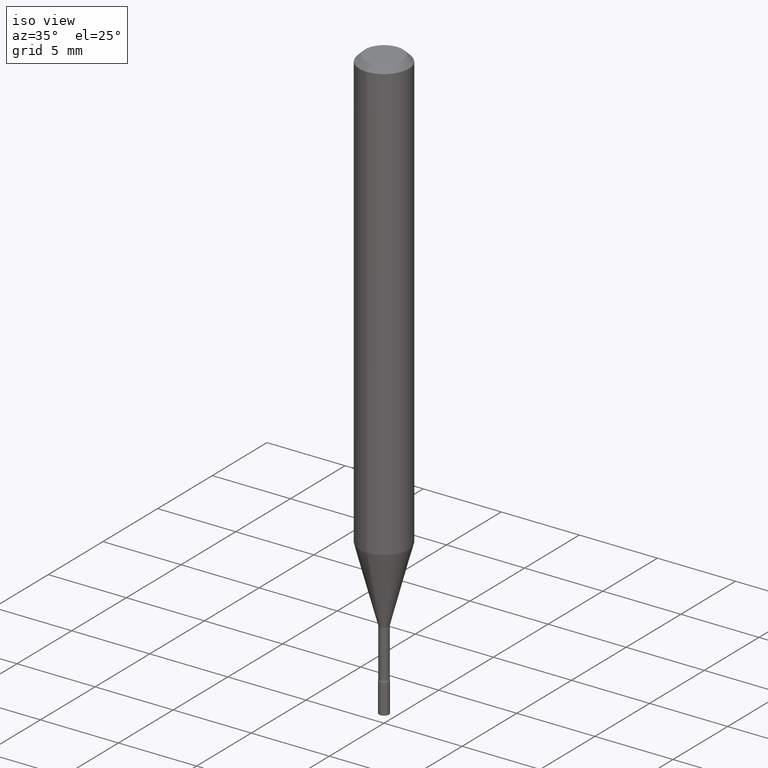
[diagram: clean part render]
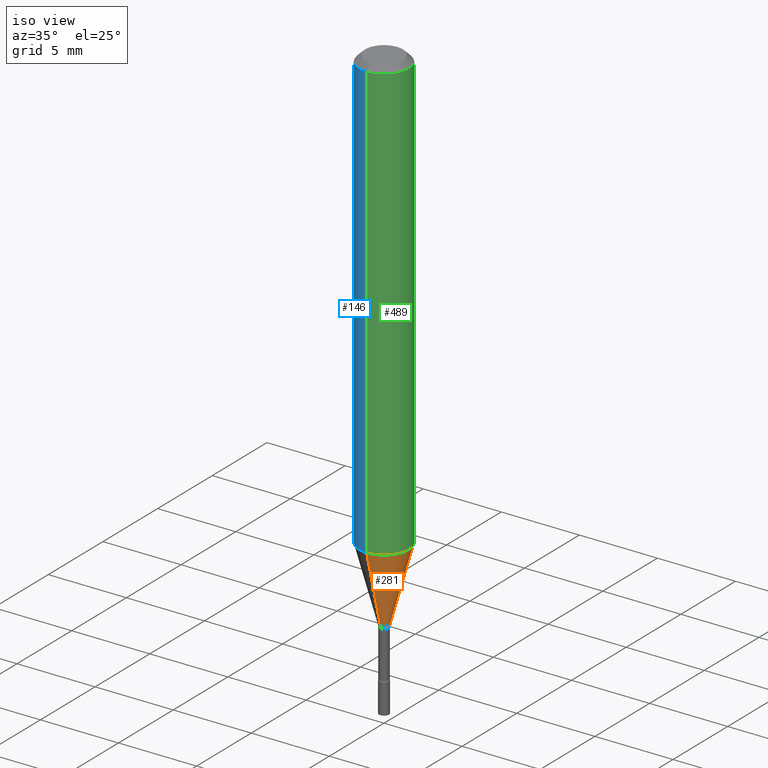
[diagram: same view with three faces highlighted in distinct colors, each labeled with its STEP entity id]
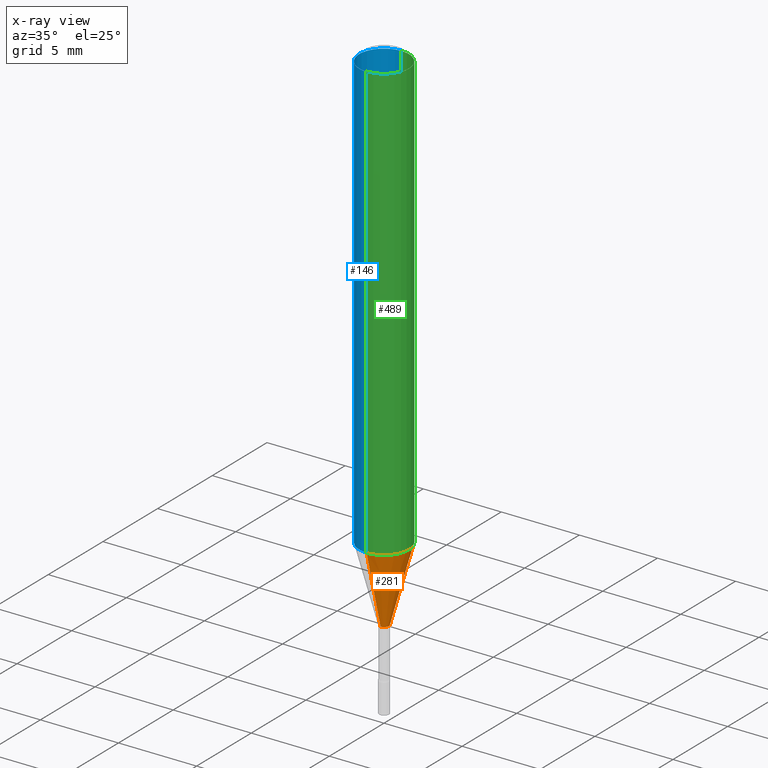
[diagram: x-ray of the same camera — body ghosted, the three highlighted faces saturated]
A machine part, iso view with three faces highlighted in distinct colors.
The next image is the same camera in x-ray (body ghosted, the three faces saturated) — at least one of them is partly hidden behind the body in this view.
Their STEP definitions:

[orange] entity #281 — the highlighted conical surface has half-angle 15 deg.
#7 = ORIENTED_EDGE ( 'NONE', *, *, #117, .T. ) ;
#19 = AXIS2_PLACEMENT_3D ( 'NONE', #509, #38, #305 ) ;
#31 = DIRECTION ( 'NONE',  ( -1.807323732225328167E-15, -0.2588190451025179084, 0.9659258262890690894 ) ) ;
#34 = CARTESIAN_POINT ( 'NONE',  ( 2.715880977445467390E-29, -3.877709302869931767E-15, -1.110598421515879952 ) ) ;
#37 = CARTESIAN_POINT ( 'NONE',  ( 2.656048273965166204E-16, 0.01226111260565944903, -1.298092501787273090 ) ) ;
#38 = DIRECTION ( 'NONE',  ( -2.445421247527529445E-29, 3.491549445547709881E-15, 1.000000000000000000 ) ) ;
#57 = EDGE_CURVE ( 'NONE', #325, #80, #343, .T. ) ;
#80 = VERTEX_POINT ( 'NONE', #230 ) ;
#117 = EDGE_CURVE ( 'NONE', #416, #204, #268, .T. ) ;
#122 = CIRCLE ( 'NONE', #513, 0.01226111260566398187 ) ;
#131 = EDGE_CURVE ( 'NONE', #325, #416, #122, .T. ) ;
#139 = DIRECTION ( 'NONE',  ( -2.445421247527529445E-29, 3.491549445547709881E-15, 1.000000000000000000 ) ) ;
#162 = ORIENTED_EDGE ( 'NONE', *, *, #57, .F. ) ;
#164 = CARTESIAN_POINT ( 'NONE',  ( 4.440892098500896347E-16, 0.06249999999999612116, -1.110598421515880174 ) ) ;
#175 = DIRECTION ( 'NONE',  ( -6.982962677686265133E-15, -1.000000000000000000, 0.000000000000000000 ) ) ;
#201 = CIRCLE ( 'NONE', #501, 0.06250000000000000000 ) ;
#204 = VERTEX_POINT ( 'NONE', #164 ) ;
#230 = CARTESIAN_POINT ( 'NONE',  ( -4.364351673553645523E-16, -0.06250000000000388578, -1.110598421515879730 ) ) ;
#232 = EDGE_LOOP ( 'NONE', ( #462, #7, #289, #162 ) ) ;
#265 = CARTESIAN_POINT ( 'NONE',  ( 3.174382985126765064E-29, -4.532354154884992382E-15, -1.298092501787273090 ) ) ;
#268 = LINE ( 'NONE', #306, #421 ) ;
#281 = ADVANCED_FACE ( 'NONE', ( #441 ), #455, .T. ) ;
#289 = ORIENTED_EDGE ( 'NONE', *, *, #311, .F. ) ;
#305 = DIRECTION ( 'NONE',  ( -6.982962677686265133E-15, -1.000000000000000000, 0.000000000000000000 ) ) ;
#306 = CARTESIAN_POINT ( 'NONE',  ( 8.712044494294308837E-17, 0.01226111260565944903, -1.298092501787273090 ) ) ;
#308 = DIRECTION ( 'NONE',  ( -6.982962677686265922E-15, -1.000000000000000000, 4.370956789862821150E-15 ) ) ;
#311 = EDGE_CURVE ( 'NONE', #80, #204, #201, .T. ) ;
#325 = VERTEX_POINT ( 'NONE', #465 ) ;
#343 = LINE ( 'NONE', #435, #459 ) ;
#351 = DIRECTION ( 'NONE',  ( -2.445421247527529445E-29, 3.491549445547709881E-15, 1.000000000000000000 ) ) ;
#416 = VERTEX_POINT ( 'NONE', #37 ) ;
#421 = VECTOR ( 'NONE', #439, 39.37007874015748854 ) ;
#435 = CARTESIAN_POINT ( 'NONE',  ( -8.561889171222843884E-17, -0.01226111260566851470, -1.298092501787273090 ) ) ;
#439 = DIRECTION ( 'NONE',  ( 1.839019923739597949E-15, 0.2588190451025246253, 0.9659258262890670910 ) ) ;
#441 = FACE_OUTER_BOUND ( 'NONE', #232, .T. ) ;
#455 = CONICAL_SURFACE ( 'NONE', #19, 0.01226111260566398187, 0.2617993877991499629 ) ;
#459 = VECTOR ( 'NONE', #31, 39.37007874015748143 ) ;
#462 = ORIENTED_EDGE ( 'NONE', *, *, #131, .T. ) ;
#465 = CARTESIAN_POINT ( 'NONE',  ( -8.561889171222843884E-17, -0.01226111260566851470, -1.298092501787273090 ) ) ;
#501 = AXIS2_PLACEMENT_3D ( 'NONE', #34, #351, #308 ) ;
#509 = CARTESIAN_POINT ( 'NONE',  ( 3.174382985126765064E-29, -4.532354154884992382E-15, -1.298092501787273090 ) ) ;
#513 = AXIS2_PLACEMENT_3D ( 'NONE', #265, #139, #175 ) ;

[blue] entity #146 — the highlighted cylindrical surface (edge-blend (fillet) strip) has radius 1.5875 mm, axis along (-0, 0, 1).
#8 = VERTEX_POINT ( 'NONE', #392 ) ;
#9 = DIRECTION ( 'NONE',  ( -6.982962677686265922E-15, -1.000000000000000000, 3.483106191921935554E-15 ) ) ;
#10 = VECTOR ( 'NONE', #503, 39.37007874015748143 ) ;
#28 = LINE ( 'NONE', #480, #368 ) ;
#29 = CARTESIAN_POINT ( 'NONE',  ( 2.715880977445467390E-29, -3.877709302869931767E-15, -1.110598421515879952 ) ) ;
#44 = EDGE_CURVE ( 'NONE', #80, #8, #28, .T. ) ;
#75 = CIRCLE ( 'NONE', #136, 0.06250000000000000000 ) ;
#80 = VERTEX_POINT ( 'NONE', #230 ) ;
#85 = ORIENTED_EDGE ( 'NONE', *, *, #183, .F. ) ;
#91 = ORIENTED_EDGE ( 'NONE', *, *, #349, .T. ) ;
#100 = LINE ( 'NONE', #442, #10 ) ;
#101 = DIRECTION ( 'NONE',  ( -2.445421247527529445E-29, 3.491549445547709881E-15, 1.000000000000000000 ) ) ;
#112 = CIRCLE ( 'NONE', #483, 0.06250000000000000000 ) ;
#136 = AXIS2_PLACEMENT_3D ( 'NONE', #174, #505, #9 ) ;
#142 = FACE_OUTER_BOUND ( 'NONE', #209, .T. ) ;
#146 = ADVANCED_FACE ( 'NONE', ( #142 ), #472, .T. ) ;
#147 = AXIS2_PLACEMENT_3D ( 'NONE', #338, #153, #314 ) ;
#148 = CARTESIAN_POINT ( 'NONE',  ( 4.440892098500899305E-16, 0.06249999999999995143, -0.01500000000000024751 ) ) ;
#153 = DIRECTION ( 'NONE',  ( -2.445421247527529445E-29, 3.491549445547709881E-15, 1.000000000000000000 ) ) ;
#164 = CARTESIAN_POINT ( 'NONE',  ( 4.440892098500896347E-16, 0.06249999999999612116, -1.110598421515880174 ) ) ;
#169 = EDGE_CURVE ( 'NONE', #204, #331, #100, .T. ) ;
#174 = CARTESIAN_POINT ( 'NONE',  ( 3.668131871291301454E-31, -5.237324168321575718E-17, -0.01500000000000003067 ) ) ;
#183 = EDGE_CURVE ( 'NONE', #331, #8, #75, .T. ) ;
#204 = VERTEX_POINT ( 'NONE', #164 ) ;
#209 = EDGE_LOOP ( 'NONE', ( #332, #91, #247, #85 ) ) ;
#230 = CARTESIAN_POINT ( 'NONE',  ( -4.364351673553645523E-16, -0.06250000000000388578, -1.110598421515879730 ) ) ;
#247 = ORIENTED_EDGE ( 'NONE', *, *, #44, .T. ) ;
#299 = DIRECTION ( 'NONE',  ( -2.445421247527529445E-29, 3.491549445547710276E-15, 1.000000000000000000 ) ) ;
#314 = DIRECTION ( 'NONE',  ( -6.982962677686265922E-15, -1.000000000000000000, 3.491549445547709881E-15 ) ) ;
#331 = VERTEX_POINT ( 'NONE', #148 ) ;
#332 = ORIENTED_EDGE ( 'NONE', *, *, #169, .F. ) ;
#338 = CARTESIAN_POINT ( 'NONE',  ( 0.000000000000000000, 0.000000000000000000, 0.000000000000000000 ) ) ;
#349 = EDGE_CURVE ( 'NONE', #204, #80, #112, .T. ) ;
#368 = VECTOR ( 'NONE', #299, 39.37007874015748143 ) ;
#392 = CARTESIAN_POINT ( 'NONE',  ( -4.364351673553912750E-16, -0.06250000000000005551, -0.01499999999999981209 ) ) ;
#428 = DIRECTION ( 'NONE',  ( -6.982962677686265922E-15, -1.000000000000000000, 4.370956789862821150E-15 ) ) ;
#442 = CARTESIAN_POINT ( 'NONE',  ( 4.440892098500625669E-16, 0.06250000000000000000, -2.182218403467318676E-16 ) ) ;
#472 = CYLINDRICAL_SURFACE ( 'NONE', #147, 0.06250000000000000000 ) ;
#480 = CARTESIAN_POINT ( 'NONE',  ( -4.364351673553916201E-16, -0.06250000000000000000, 2.182218403467318676E-16 ) ) ;
#483 = AXIS2_PLACEMENT_3D ( 'NONE', #29, #101, #428 ) ;
#503 = DIRECTION ( 'NONE',  ( -2.445421247527529445E-29, 3.491549445547710276E-15, 1.000000000000000000 ) ) ;
#505 = DIRECTION ( 'NONE',  ( -2.445421247527529445E-29, 3.491549445547709881E-15, 1.000000000000000000 ) ) ;

[green] entity #489 — the highlighted cylindrical surface (edge-blend (fillet) strip) has radius 1.5875 mm, axis along (-0, 0, 1).
#8 = VERTEX_POINT ( 'NONE', #392 ) ;
#10 = VECTOR ( 'NONE', #503, 39.37007874015748143 ) ;
#26 = DIRECTION ( 'NONE',  ( -2.445421247527529445E-29, 3.491549445547709881E-15, 1.000000000000000000 ) ) ;
#28 = LINE ( 'NONE', #480, #368 ) ;
#34 = CARTESIAN_POINT ( 'NONE',  ( 2.715880977445467390E-29, -3.877709302869931767E-15, -1.110598421515879952 ) ) ;
#44 = EDGE_CURVE ( 'NONE', #80, #8, #28, .T. ) ;
#61 = CYLINDRICAL_SURFACE ( 'NONE', #138, 0.06250000000000000000 ) ;
#62 = DIRECTION ( 'NONE',  ( -2.445421247527529445E-29, 3.491549445547709881E-15, 1.000000000000000000 ) ) ;
#80 = VERTEX_POINT ( 'NONE', #230 ) ;
#100 = LINE ( 'NONE', #442, #10 ) ;
#138 = AXIS2_PLACEMENT_3D ( 'NONE', #217, #26, #178 ) ;
#148 = CARTESIAN_POINT ( 'NONE',  ( 4.440892098500899305E-16, 0.06249999999999995143, -0.01500000000000024751 ) ) ;
#164 = CARTESIAN_POINT ( 'NONE',  ( 4.440892098500896347E-16, 0.06249999999999612116, -1.110598421515880174 ) ) ;
#169 = EDGE_CURVE ( 'NONE', #204, #331, #100, .T. ) ;
#178 = DIRECTION ( 'NONE',  ( -6.982962677686265922E-15, -1.000000000000000000, 3.491549445547709881E-15 ) ) ;
#180 = EDGE_CURVE ( 'NONE', #8, #331, #348, .T. ) ;
#196 = EDGE_LOOP ( 'NONE', ( #357, #488, #487, #364 ) ) ;
#201 = CIRCLE ( 'NONE', #501, 0.06250000000000000000 ) ;
#204 = VERTEX_POINT ( 'NONE', #164 ) ;
#216 = DIRECTION ( 'NONE',  ( -6.982962677686265922E-15, -1.000000000000000000, 3.483106191921935554E-15 ) ) ;
#217 = CARTESIAN_POINT ( 'NONE',  ( 0.000000000000000000, 0.000000000000000000, 0.000000000000000000 ) ) ;
#230 = CARTESIAN_POINT ( 'NONE',  ( -4.364351673553645523E-16, -0.06250000000000388578, -1.110598421515879730 ) ) ;
#251 = AXIS2_PLACEMENT_3D ( 'NONE', #427, #62, #216 ) ;
#299 = DIRECTION ( 'NONE',  ( -2.445421247527529445E-29, 3.491549445547710276E-15, 1.000000000000000000 ) ) ;
#308 = DIRECTION ( 'NONE',  ( -6.982962677686265922E-15, -1.000000000000000000, 4.370956789862821150E-15 ) ) ;
#311 = EDGE_CURVE ( 'NONE', #80, #204, #201, .T. ) ;
#331 = VERTEX_POINT ( 'NONE', #148 ) ;
#348 = CIRCLE ( 'NONE', #251, 0.06250000000000000000 ) ;
#351 = DIRECTION ( 'NONE',  ( -2.445421247527529445E-29, 3.491549445547709881E-15, 1.000000000000000000 ) ) ;
#357 = ORIENTED_EDGE ( 'NONE', *, *, #311, .T. ) ;
#364 = ORIENTED_EDGE ( 'NONE', *, *, #44, .F. ) ;
#368 = VECTOR ( 'NONE', #299, 39.37007874015748143 ) ;
#392 = CARTESIAN_POINT ( 'NONE',  ( -4.364351673553912750E-16, -0.06250000000000005551, -0.01499999999999981209 ) ) ;
#426 = FACE_OUTER_BOUND ( 'NONE', #196, .T. ) ;
#427 = CARTESIAN_POINT ( 'NONE',  ( 3.668131871291301454E-31, -5.237324168321575718E-17, -0.01500000000000003067 ) ) ;
#442 = CARTESIAN_POINT ( 'NONE',  ( 4.440892098500625669E-16, 0.06250000000000000000, -2.182218403467318676E-16 ) ) ;
#480 = CARTESIAN_POINT ( 'NONE',  ( -4.364351673553916201E-16, -0.06250000000000000000, 2.182218403467318676E-16 ) ) ;
#487 = ORIENTED_EDGE ( 'NONE', *, *, #180, .F. ) ;
#488 = ORIENTED_EDGE ( 'NONE', *, *, #169, .T. ) ;
#489 = ADVANCED_FACE ( 'NONE', ( #426 ), #61, .T. ) ;
#501 = AXIS2_PLACEMENT_3D ( 'NONE', #34, #351, #308 ) ;
#503 = DIRECTION ( 'NONE',  ( -2.445421247527529445E-29, 3.491549445547710276E-15, 1.000000000000000000 ) ) ;